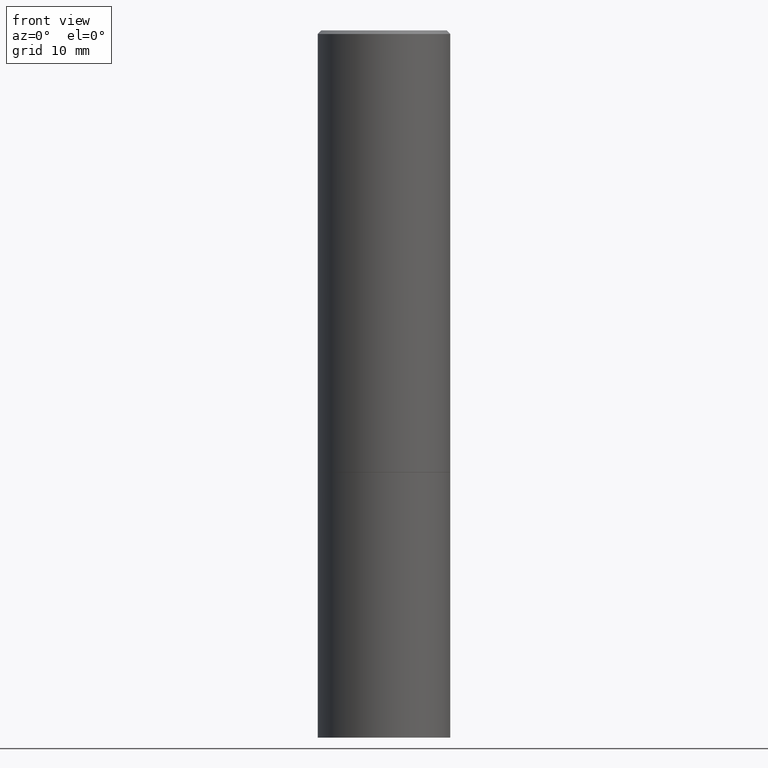
[diagram: clean part render]
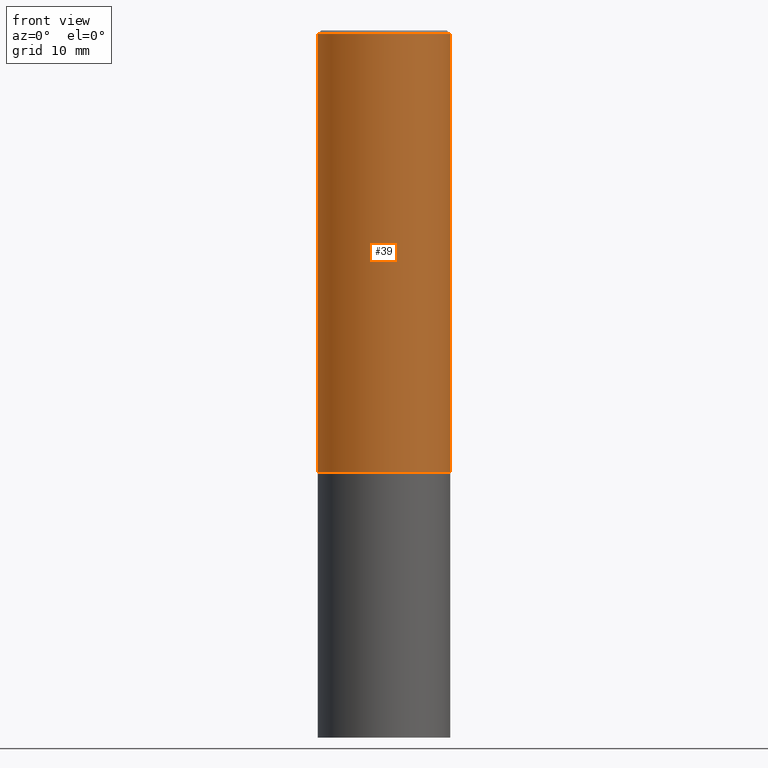
[diagram: same view with one face highlighted and labeled with its STEP entity id]
A machine part, front view. The second image highlights one B-rep face of the part: STEP entity #39.
In plain terms, the highlighted cylindrical surface (partial cylindrical patch) has radius 9.525 mm, axis along (-0, 0, 1).
Its self-contained STEP definition (entity closure, byte-faithful):
#3 = CARTESIAN_POINT ( 'NONE',  ( 4.890937612370296805E-31, -6.982962677686323656E-17, -0.02000000000000009409 ) ) ;
#5 = DIRECTION ( 'NONE',  ( -2.445468806185136877E-29, 3.491481338843145188E-15, 1.000000000000000000 ) ) ;
#9 = AXIS2_PLACEMENT_3D ( 'NONE', #3, #65, #225 ) ;
#22 = AXIS2_PLACEMENT_3D ( 'NONE', #219, #52, #157 ) ;
#32 = CARTESIAN_POINT ( 'NONE',  ( -0.3749999999999998335, 2.664535259100374514E-15, -1.844600658845588757E-29 ) ) ;
#39 = ADVANCED_FACE ( 'NONE', ( #366 ), #133, .T. ) ;
#48 = EDGE_CURVE ( 'NONE', #210, #297, #161, .T. ) ;
#52 = DIRECTION ( 'NONE',  ( -2.445468806185136597E-29, 3.491481338843145583E-15, 1.000000000000000000 ) ) ;
#62 = VECTOR ( 'NONE', #5, 39.37007874015748143 ) ;
#65 = DIRECTION ( 'NONE',  ( -2.445468806185136597E-29, 3.491481338843145583E-15, 1.000000000000000000 ) ) ;
#71 = EDGE_LOOP ( 'NONE', ( #356, #220, #323, #153 ) ) ;
#86 = CARTESIAN_POINT ( 'NONE',  ( 0.3749999999999996669, -2.642516375941185662E-15, -0.02000000000000009409 ) ) ;
#103 = VERTEX_POINT ( 'NONE', #281 ) ;
#123 = CIRCLE ( 'NONE', #22, 0.3750000000000000555 ) ;
#125 = CARTESIAN_POINT ( 'NONE',  ( -0.3749999999999999445, -1.732985487172566723E-15, -2.499000000000000998 ) ) ;
#133 = CYLINDRICAL_SURFACE ( 'NONE', #159, 0.3749999999999998335 ) ;
#153 = ORIENTED_EDGE ( 'NONE', *, *, #167, .F. ) ;
#157 = DIRECTION ( 'NONE',  ( 1.000000000000000000, -6.982962677686264344E-15, 0.000000000000000000 ) ) ;
#159 = AXIS2_PLACEMENT_3D ( 'NONE', #168, #255, #224 ) ;
#161 = LINE ( 'NONE', #32, #62 ) ;
#167 = EDGE_CURVE ( 'NONE', #297, #239, #251, .T. ) ;
#168 = CARTESIAN_POINT ( 'NONE',  ( 0.000000000000000000, 0.000000000000000000, 0.000000000000000000 ) ) ;
#197 = VECTOR ( 'NONE', #237, 39.37007874015748143 ) ;
#210 = VERTEX_POINT ( 'NONE', #125 ) ;
#219 = CARTESIAN_POINT ( 'NONE',  ( 6.111226546656659252E-29, -8.725211865769023513E-15, -2.499000000000000998 ) ) ;
#220 = ORIENTED_EDGE ( 'NONE', *, *, #347, .T. ) ;
#224 = DIRECTION ( 'NONE',  ( 1.000000000000000000, -6.982962677686265922E-15, 4.876176775795935793E-29 ) ) ;
#225 = DIRECTION ( 'NONE',  ( 1.000000000000000000, -6.982962677686266711E-15, 0.000000000000000000 ) ) ;
#237 = DIRECTION ( 'NONE',  ( -2.445468806185136877E-29, 3.491481338843145188E-15, 1.000000000000000000 ) ) ;
#238 = EDGE_CURVE ( 'NONE', #103, #239, #269, .T. ) ;
#239 = VERTEX_POINT ( 'NONE', #86 ) ;
#251 = CIRCLE ( 'NONE', #9, 0.3749999999999996669 ) ;
#255 = DIRECTION ( 'NONE',  ( -2.445468806185136597E-29, 3.491481338843145583E-15, 1.000000000000000000 ) ) ;
#258 = CARTESIAN_POINT ( 'NONE',  ( 0.3749999999999998335, -2.618611004132348439E-15, 1.828566290923475082E-29 ) ) ;
#269 = LINE ( 'NONE', #258, #197 ) ;
#281 = CARTESIAN_POINT ( 'NONE',  ( 0.3750000000000000555, -1.134382286990137353E-14, -2.499000000000000998 ) ) ;
#297 = VERTEX_POINT ( 'NONE', #309 ) ;
#309 = CARTESIAN_POINT ( 'NONE',  ( -0.3749999999999996669, 2.548781377355484352E-15, -0.02000000000000009409 ) ) ;
#323 = ORIENTED_EDGE ( 'NONE', *, *, #238, .T. ) ;
#347 = EDGE_CURVE ( 'NONE', #210, #103, #123, .T. ) ;
#356 = ORIENTED_EDGE ( 'NONE', *, *, #48, .F. ) ;
#366 = FACE_OUTER_BOUND ( 'NONE', #71, .T. ) ;